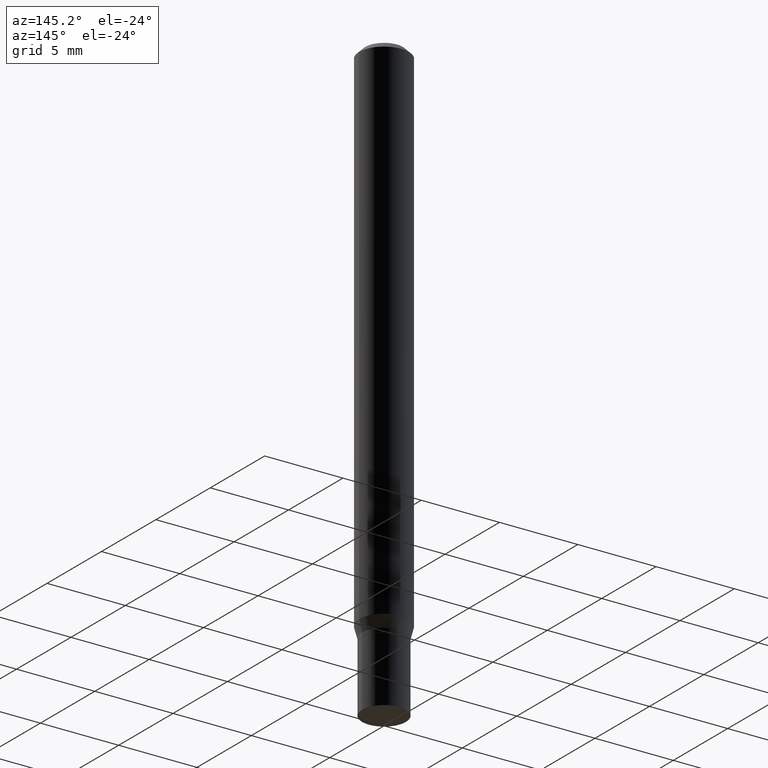
[diagram: clean part render]
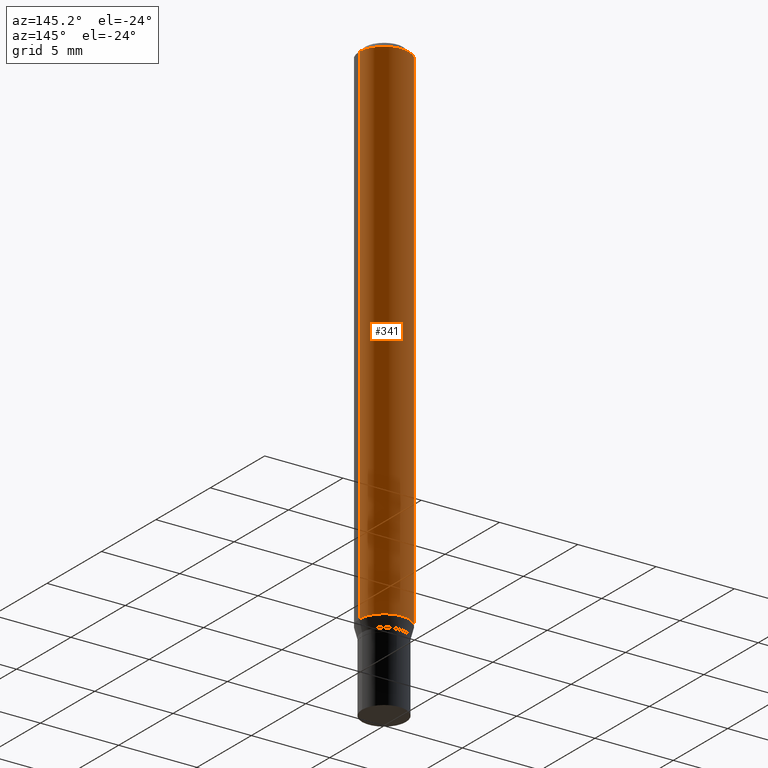
[diagram: same view with one face highlighted and labeled with its STEP entity id]
A machine part, auxiliary view. The second image highlights one B-rep face of the part: STEP entity #341.
In plain terms, the highlighted cylindrical surface (edge-blend (fillet) strip) has radius 1.5875 mm, axis along (-0, 0, 1).
Its self-contained STEP definition (entity closure, byte-faithful):
#1 = CARTESIAN_POINT ( 'NONE',  ( 3.668203209277705088E-31, -5.237222008264718399E-17, -0.01499999999999999944 ) ) ;
#5 = DIRECTION ( 'NONE',  ( 1.000000000000000000, -6.982962677686266711E-15, 0.000000000000000000 ) ) ;
#22 = CARTESIAN_POINT ( 'NONE',  ( 0.06250000000000000000, -4.964920048195750682E-15, -1.297009618943233411 ) ) ;
#24 = ORIENTED_EDGE ( 'NONE', *, *, #27, .F. ) ;
#27 = EDGE_CURVE ( 'NONE', #356, #144, #343, .T. ) ;
#31 = EDGE_CURVE ( 'NONE', #246, #356, #309, .T. ) ;
#59 = ORIENTED_EDGE ( 'NONE', *, *, #361, .T. ) ;
#68 = DIRECTION ( 'NONE',  ( -2.445468806185136877E-29, 3.491481338843145188E-15, 1.000000000000000000 ) ) ;
#87 = EDGE_CURVE ( 'NONE', #246, #413, #414, .T. ) ;
#90 = VECTOR ( 'NONE', #433, 39.37007874015748143 ) ;
#100 = ORIENTED_EDGE ( 'NONE', *, *, #31, .F. ) ;
#113 = DIRECTION ( 'NONE',  ( -2.445468806185136597E-29, 3.491481338843145583E-15, 1.000000000000000000 ) ) ;
#122 = CARTESIAN_POINT ( 'NONE',  ( 0.06250000000000000000, -4.364351673553916694E-16, 3.047610484872459871E-30 ) ) ;
#130 = VECTOR ( 'NONE', #68, 39.37007874015748143 ) ;
#144 = VERTEX_POINT ( 'NONE', #357 ) ;
#154 = FACE_OUTER_BOUND ( 'NONE', #182, .T. ) ;
#179 = AXIS2_PLACEMENT_3D ( 'NONE', #303, #113, #369 ) ;
#182 = EDGE_LOOP ( 'NONE', ( #389, #59, #24, #100 ) ) ;
#193 = CARTESIAN_POINT ( 'NONE',  ( 0.000000000000000000, 0.000000000000000000, 0.000000000000000000 ) ) ;
#224 = CARTESIAN_POINT ( 'NONE',  ( -0.06250000000000000000, -4.084395670990296396E-15, -1.297009618943233411 ) ) ;
#246 = VERTEX_POINT ( 'NONE', #22 ) ;
#260 = CARTESIAN_POINT ( 'NONE',  ( 0.06250000000000000000, -4.888073874380388472E-16, -0.01499999999999999944 ) ) ;
#303 = CARTESIAN_POINT ( 'NONE',  ( 3.171796564447747781E-29, -4.528484880840358223E-15, -1.297009618943233411 ) ) ;
#309 = LINE ( 'NONE', #122, #90 ) ;
#341 = ADVANCED_FACE ( 'NONE', ( #154 ), #466, .T. ) ;
#343 = CIRCLE ( 'NONE', #387, 0.06250000000000000000 ) ;
#356 = VERTEX_POINT ( 'NONE', #260 ) ;
#357 = CARTESIAN_POINT ( 'NONE',  ( -0.06250000000000000000, -1.846339340611440232E-15, -0.01499999999999999944 ) ) ;
#361 = EDGE_CURVE ( 'NONE', #413, #144, #405, .T. ) ;
#369 = DIRECTION ( 'NONE',  ( 1.000000000000000000, -6.982962677686262766E-15, 0.000000000000000000 ) ) ;
#387 = AXIS2_PLACEMENT_3D ( 'NONE', #1, #401, #5 ) ;
#388 = AXIS2_PLACEMENT_3D ( 'NONE', #193, #426, #459 ) ;
#389 = ORIENTED_EDGE ( 'NONE', *, *, #87, .T. ) ;
#397 = CARTESIAN_POINT ( 'NONE',  ( -0.06250000000000000000, 4.440892098500626162E-16, -3.074334431409316114E-30 ) ) ;
#401 = DIRECTION ( 'NONE',  ( -2.445468806185136597E-29, 3.491481338843145583E-15, 1.000000000000000000 ) ) ;
#405 = LINE ( 'NONE', #397, #130 ) ;
#413 = VERTEX_POINT ( 'NONE', #224 ) ;
#414 = CIRCLE ( 'NONE', #179, 0.06250000000000000000 ) ;
#426 = DIRECTION ( 'NONE',  ( -2.445468806185136597E-29, 3.491481338843145583E-15, 1.000000000000000000 ) ) ;
#433 = DIRECTION ( 'NONE',  ( -2.445468806185136877E-29, 3.491481338843145188E-15, 1.000000000000000000 ) ) ;
#459 = DIRECTION ( 'NONE',  ( 1.000000000000000000, -6.982962677686266711E-15, 4.876176775795935793E-29 ) ) ;
#466 = CYLINDRICAL_SURFACE ( 'NONE', #388, 0.06250000000000000000 ) ;